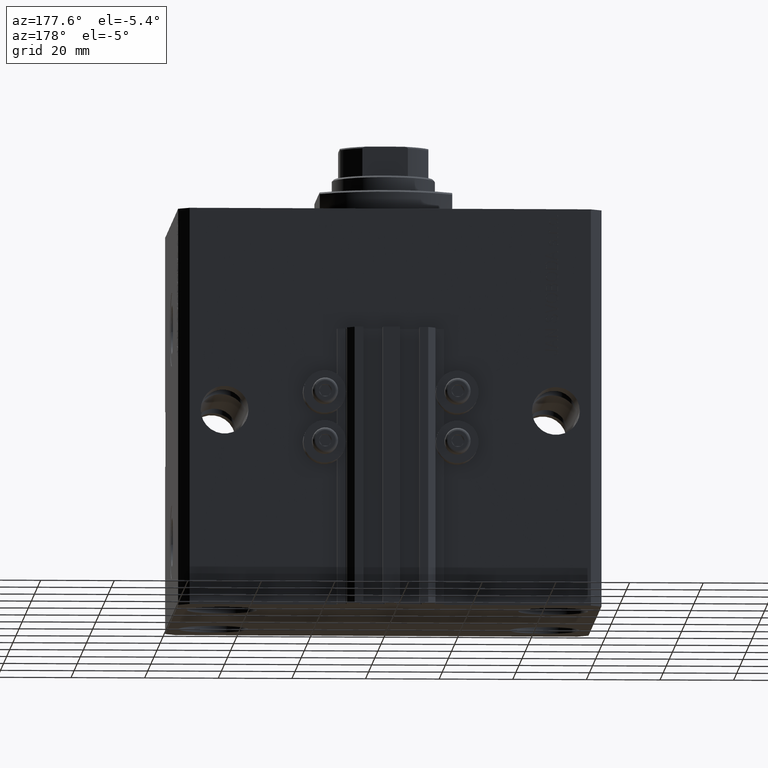
[diagram: clean part render]
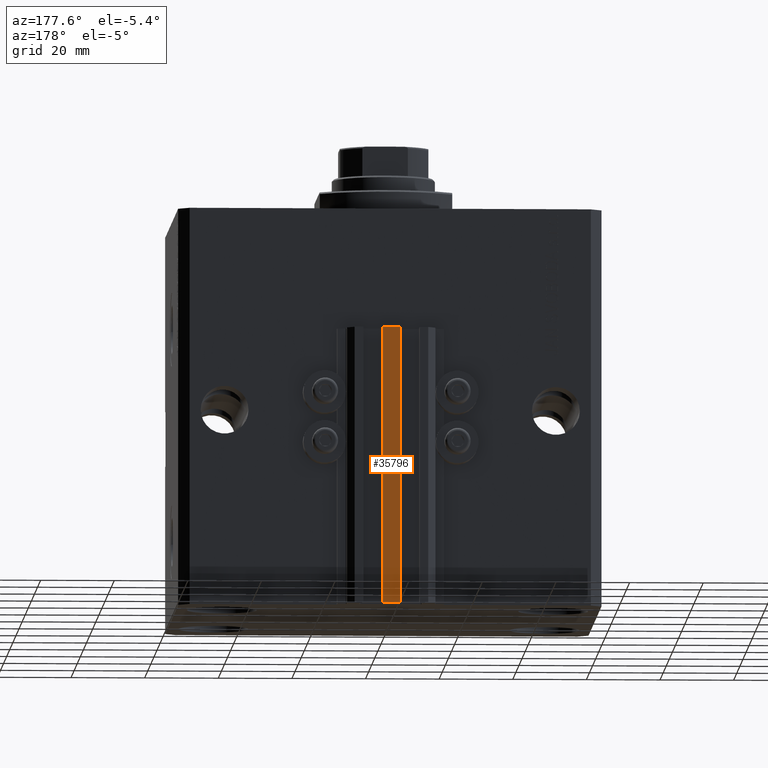
[diagram: same view with one face highlighted and labeled with its STEP entity id]
A machine part, auxiliary view. The second image highlights one B-rep face of the part: STEP entity #35796.
In plain terms, the highlighted planar face has unit normal (0, -1, 0).
Its self-contained STEP definition (entity closure, byte-faithful):
#1223 = CARTESIAN_POINT ( 'NONE',  ( 2.349999999999999645, 53.00000000000000000, -108.0000000000000000 ) ) ;
#4810 = DIRECTION ( 'NONE',  ( 1.000000000000000000, 0.000000000000000000, 0.000000000000000000 ) ) ;
#4852 = CARTESIAN_POINT ( 'NONE',  ( 2.349999999999999645, 53.00000000000000000, -33.00000000000000000 ) ) ;
#5130 = DIRECTION ( 'NONE',  ( 0.000000000000000000, 0.000000000000000000, 1.000000000000000000 ) ) ;
#5491 = VECTOR ( 'NONE', #4810, 1000.000000000000000 ) ;
#6661 = LINE ( 'NONE', #17392, #13349 ) ;
#7273 = EDGE_CURVE ( 'NONE', #33441, #45057, #27630, .T. ) ;
#9268 = LINE ( 'NONE', #31678, #5491 ) ;
#13349 = VECTOR ( 'NONE', #43969, 1000.000000000000000 ) ;
#13479 = ORIENTED_EDGE ( 'NONE', *, *, #47399, .T. ) ;
#14100 = CARTESIAN_POINT ( 'NONE',  ( 2.349999999999999645, 53.00000000000000000, -108.0000000000000000 ) ) ;
#16388 = ORIENTED_EDGE ( 'NONE', *, *, #17015, .T. ) ;
#16614 = EDGE_LOOP ( 'NONE', ( #16388, #23503, #19458, #13479 ) ) ;
#17015 = EDGE_CURVE ( 'NONE', #47374, #45057, #6661, .T. ) ;
#17392 = CARTESIAN_POINT ( 'NONE',  ( -2.350000000000003642, 53.00000000000000000, -33.00000000000000000 ) ) ;
#17860 = DIRECTION ( 'NONE',  ( 0.000000000000000000, -1.000000000000000000, 0.000000000000000000 ) ) ;
#19458 = ORIENTED_EDGE ( 'NONE', *, *, #31363, .F. ) ;
#22609 = DIRECTION ( 'NONE',  ( 0.000000000000000000, -0.000000000000000000, -1.000000000000000000 ) ) ;
#23503 = ORIENTED_EDGE ( 'NONE', *, *, #7273, .F. ) ;
#25588 = CARTESIAN_POINT ( 'NONE',  ( -2.350000000000003642, 53.00000000000000000, -108.0000000000000000 ) ) ;
#25637 = VERTEX_POINT ( 'NONE', #29928 ) ;
#27630 = LINE ( 'NONE', #1223, #48849 ) ;
#27803 = CARTESIAN_POINT ( 'NONE',  ( -2.350000000000003642, 53.00000000000000000, -33.00000000000000000 ) ) ;
#29743 = VECTOR ( 'NONE', #5130, 1000.000000000000000 ) ;
#29928 = CARTESIAN_POINT ( 'NONE',  ( -2.350000000000003642, 53.00000000000000000, -108.0000000000000000 ) ) ;
#31363 = EDGE_CURVE ( 'NONE', #25637, #33441, #9268, .T. ) ;
#31678 = CARTESIAN_POINT ( 'NONE',  ( -2.350000000000003642, 53.00000000000000000, -108.0000000000000000 ) ) ;
#31820 = FACE_OUTER_BOUND ( 'NONE', #16614, .T. ) ;
#33441 = VERTEX_POINT ( 'NONE', #14100 ) ;
#34750 = LINE ( 'NONE', #38717, #29743 ) ;
#35035 = AXIS2_PLACEMENT_3D ( 'NONE', #25588, #17860, #22609 ) ;
#35796 = ADVANCED_FACE ( 'NONE', ( #31820 ), #47214, .F. ) ;
#38717 = CARTESIAN_POINT ( 'NONE',  ( -2.350000000000003642, 53.00000000000000000, -108.0000000000000000 ) ) ;
#43969 = DIRECTION ( 'NONE',  ( 1.000000000000000000, 0.000000000000000000, 0.000000000000000000 ) ) ;
#45057 = VERTEX_POINT ( 'NONE', #4852 ) ;
#46000 = DIRECTION ( 'NONE',  ( 0.000000000000000000, 0.000000000000000000, 1.000000000000000000 ) ) ;
#47214 = PLANE ( 'NONE',  #35035 ) ;
#47374 = VERTEX_POINT ( 'NONE', #27803 ) ;
#47399 = EDGE_CURVE ( 'NONE', #25637, #47374, #34750, .T. ) ;
#48849 = VECTOR ( 'NONE', #46000, 1000.000000000000000 ) ;